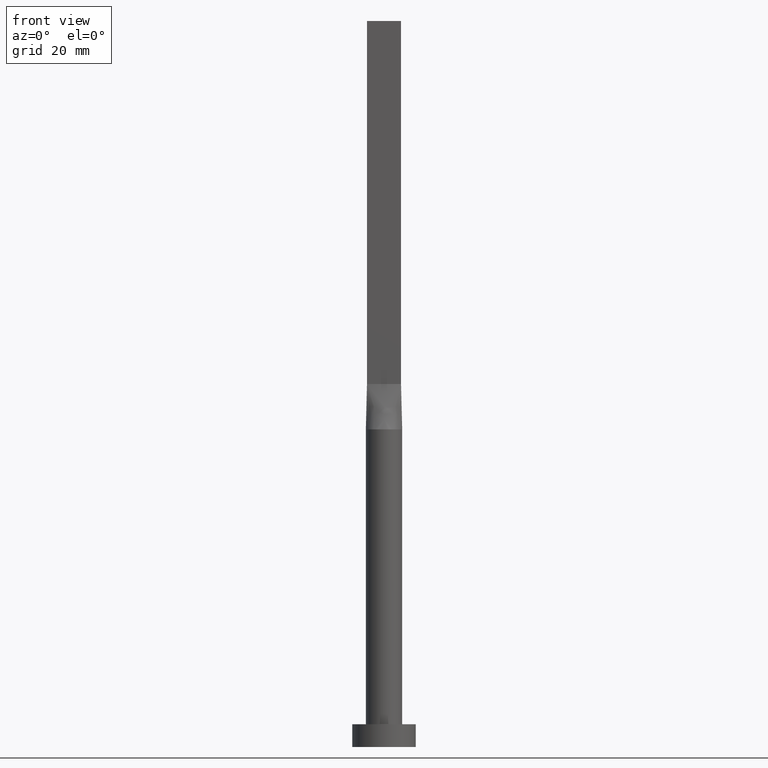
[diagram: clean part render]
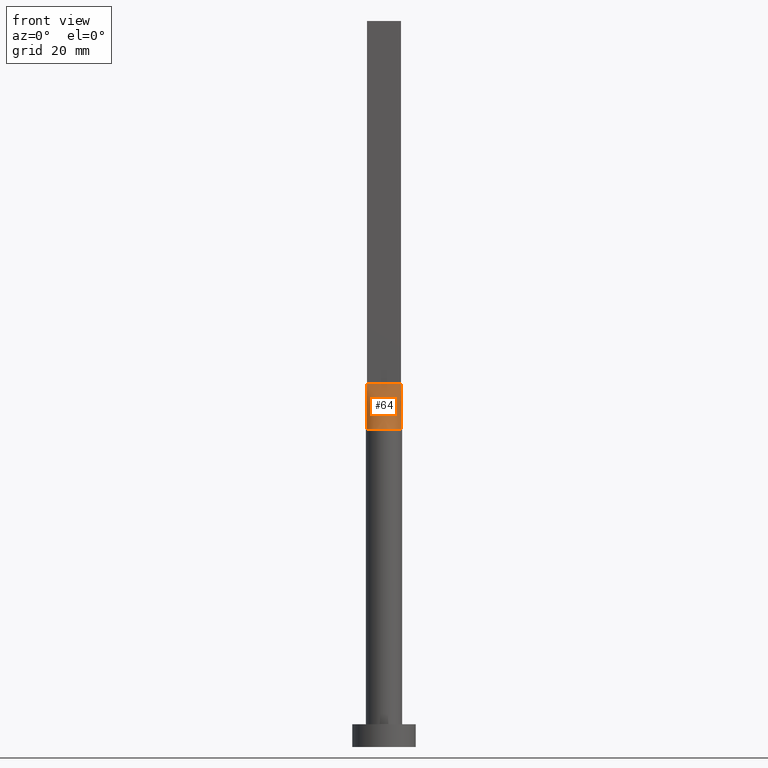
[diagram: same view with one face highlighted and labeled with its STEP entity id]
A machine part, front view. The second image highlights one B-rep face of the part: STEP entity #64.
In plain terms, the highlighted face is a freeform B-spline surface patch.
Its self-contained STEP definition (entity closure, byte-faithful):
#33 = CARTESIAN_POINT ( 'NONE',  ( -0.3125000000000197065, -0.9999999999999993339, 80.00000000000000000 ) ) ;
#35 = CARTESIAN_POINT ( 'NONE',  ( 1.249999999999982236, -0.9999999999999995559, 79.99999999999998579 ) ) ;
#37 = CARTESIAN_POINT ( 'NONE',  ( -2.187500000000013323, -0.9999999999999993339, 79.99999999999998579 ) ) ;
#49 = VECTOR ( 'NONE', #368, 1000.000000000000114 ) ;
#54 = LINE ( 'NONE', #100, #49 ) ;
#61 = EDGE_CURVE ( 'NONE', #141, #547, #78, .T. ) ;
#64 = ADVANCED_FACE ( 'NONE', ( #222 ), #539, .T. ) ;
#73 = CARTESIAN_POINT ( 'NONE',  ( 2.346407003458400364, -3.270103945996944095, 70.00000000000001421 ) ) ;
#76 = CARTESIAN_POINT ( 'NONE',  ( 2.187499999999986677, -0.9999999999999995559, 79.99999999999998579 ) ) ;
#78 = LINE ( 'NONE', #310, #249 ) ;
#79 = CARTESIAN_POINT ( 'NONE',  ( -3.750000000000000000, -0.9999999999999991118, 80.00000000000000000 ) ) ;
#80 = CARTESIAN_POINT ( 'NONE',  ( 1.023074425454087555, -3.898373771260455811, 70.00000000000001421 ) ) ;
#84 = DIRECTION ( 'NONE',  ( 1.000000000000000000, -8.673617379884035472E-17, 0.000000000000000000 ) ) ;
#100 = CARTESIAN_POINT ( 'NONE',  ( -3.807469879202492802, -1.015325301120663548, 75.00000000000001421 ) ) ;
#104 = VERTEX_POINT ( 'NONE', #185 ) ;
#118 = CARTESIAN_POINT ( 'NONE',  ( -2.500000000000011102, -0.9999999999999991118, 79.99999999999998579 ) ) ;
#124 = CARTESIAN_POINT ( 'NONE',  ( -3.781952206537765981, -1.341853921743402900, 70.00000000000001421 ) ) ;
#130 = CARTESIAN_POINT ( 'NONE',  ( 3.781952206537765981, -1.341853921743404232, 70.00000000000001421 ) ) ;
#138 = EDGE_LOOP ( 'NONE', ( #386, #226, #246, #209 ) ) ;
#139 = DIRECTION ( 'NONE',  ( 0.000000000000000000, 0.000000000000000000, 1.000000000000000000 ) ) ;
#141 = VERTEX_POINT ( 'NONE', #143 ) ;
#143 = CARTESIAN_POINT ( 'NONE',  ( 3.865244591400370577, -1.030732999276501527, 70.00000000000000000 ) ) ;
#147 = AXIS2_PLACEMENT_3D ( 'NONE', #529, #139, #171 ) ;
#165 = CARTESIAN_POINT ( 'NONE',  ( -2.346407003458402141, -3.270103945996943651, 69.99999999999998579 ) ) ;
#167 = EDGE_CURVE ( 'NONE', #456, #104, #54, .T. ) ;
#168 = CARTESIAN_POINT ( 'NONE',  ( -3.864939758404985604, -1.030650602241328206, 70.00000000000000000 ) ) ;
#170 = CARTESIAN_POINT ( 'NONE',  ( -1.940702937457744692, -3.532374760555929250, 70.00000000000000000 ) ) ;
#171 = DIRECTION ( 'NONE',  ( 1.000000000000000000, 0.000000000000000000, 0.000000000000000000 ) ) ;
#172 = CARTESIAN_POINT ( 'NONE',  ( 1.562499999999983569, -0.9999999999999995559, 79.99999999999998579 ) ) ;
#185 = CARTESIAN_POINT ( 'NONE',  ( -3.865220763612065902, -1.030726602927787949, 70.00000000000000000 ) ) ;
#209 = ORIENTED_EDGE ( 'NONE', *, *, #167, .T. ) ;
#214 = CARTESIAN_POINT ( 'NONE',  ( -0.5121855420560018635, -4.000000000000000000, 70.00000000000000000 ) ) ;
#217 = CARTESIAN_POINT ( 'NONE',  ( 3.653499896451230633, -1.673258289339059068, 70.00000000000001421 ) ) ;
#219 = CARTESIAN_POINT ( 'NONE',  ( -0.6250000000000193179, -0.9999999999999993339, 79.99999999999998579 ) ) ;
#222 = FACE_OUTER_BOUND ( 'NONE', #138, .T. ) ;
#226 = ORIENTED_EDGE ( 'NONE', *, *, #61, .T. ) ;
#246 = ORIENTED_EDGE ( 'NONE', *, *, #457, .F. ) ;
#249 = VECTOR ( 'NONE', #568, 1000.000000000000114 ) ;
#256 = CARTESIAN_POINT ( 'NONE',  ( 2.499999999999988898, -0.9999999999999995559, 79.99999999999998579 ) ) ;
#258 = CARTESIAN_POINT ( 'NONE',  ( -3.125000000000005773, -0.9999999999999991118, 79.99999999999998579 ) ) ;
#261 = CARTESIAN_POINT ( 'NONE',  ( 0.3124999999999803491, -0.9999999999999995559, 79.99999999999998579 ) ) ;
#280 = VECTOR ( 'NONE', #84, 1000.000000000000000 ) ;
#302 = CARTESIAN_POINT ( 'NONE',  ( 0.5121855420560003092, -3.999999999999999112, 69.99999999999998579 ) ) ;
#306 = CARTESIAN_POINT ( 'NONE',  ( -3.267840578657194239, -2.338604872288696956, 70.00000000000000000 ) ) ;
#309 = CARTESIAN_POINT ( 'NONE',  ( -3.750000000000000000, -0.9999999999999991118, 80.00000000000000000 ) ) ;
#310 = CARTESIAN_POINT ( 'NONE',  ( 3.807469879202492802, -1.015325301120664214, 75.00000000000001421 ) ) ;
#313 = CARTESIAN_POINT ( 'NONE',  ( 3.124999999999993783, -0.9999999999999995559, 79.99999999999998579 ) ) ;
#324 = CARTESIAN_POINT ( 'NONE',  ( 3.750000000000000000, -0.9999999999999997780, 80.00000000000000000 ) ) ;
#348 = CARTESIAN_POINT ( 'NONE',  ( 3.750000000000000000, -0.9999999999999997780, 80.00000000000000000 ) ) ;
#350 = CARTESIAN_POINT ( 'NONE',  ( -1.562500000000016653, -0.9999999999999993339, 79.99999999999998579 ) ) ;
#353 = CARTESIAN_POINT ( 'NONE',  ( -1.250000000000017764, -0.9999999999999993339, 79.99999999999998579 ) ) ;
#356 = CARTESIAN_POINT ( 'NONE',  ( -1.023074425454088887, -3.898373771260456255, 69.99999999999998579 ) ) ;
#357 = EDGE_CURVE ( 'NONE', #104, #141, #403, .T. ) ;
#368 = DIRECTION ( 'NONE',  ( -0.01149316269309400701, -0.003064843384825017159, -0.9999292544707033548 ) ) ;
#386 = ORIENTED_EDGE ( 'NONE', *, *, #357, .T. ) ;
#391 = CARTESIAN_POINT ( 'NONE',  ( -3.009488128496037529, -2.672487015486668227, 70.00000000000000000 ) ) ;
#396 = CARTESIAN_POINT ( 'NONE',  ( 3.864939758404985604, -1.030650602241328873, 70.00000000000000000 ) ) ;
#399 = CARTESIAN_POINT ( 'NONE',  ( 3.437499999999996447, -0.9999999999999995559, 79.99999999999998579 ) ) ;
#403 = CIRCLE ( 'NONE', #147, 4.000000000000000000 ) ;
#434 = CARTESIAN_POINT ( 'NONE',  ( -3.653499896451231521, -1.673258289339057514, 70.00000000000000000 ) ) ;
#436 = CARTESIAN_POINT ( 'NONE',  ( 3.267840578657194239, -2.338604872288699177, 70.00000000000001421 ) ) ;
#438 = CARTESIAN_POINT ( 'NONE',  ( 1.940702937457743360, -3.532374760555930582, 69.99999999999998579 ) ) ;
#441 = CARTESIAN_POINT ( 'NONE',  ( -3.750000000000000000, -0.9999999999999991118, 80.00000000000000000 ) ) ;
#456 = VERTEX_POINT ( 'NONE', #309 ) ;
#457 = EDGE_CURVE ( 'NONE', #456, #547, #484, .T. ) ;
#484 = LINE ( 'NONE', #79, #280 ) ;
#527 = CARTESIAN_POINT ( 'NONE',  ( 0.6249999999999806821, -0.9999999999999995559, 79.99999999999998579 ) ) ;
#529 = CARTESIAN_POINT ( 'NONE',  ( 0.000000000000000000, 0.000000000000000000, 70.00000000000000000 ) ) ;
#539 = B_SPLINE_SURFACE_WITH_KNOTS ( 'NONE', 3, 1, ( 
 ( #168, #441 ),
 ( #124, #565 ),
 ( #434, #258 ),
 ( #306, #118 ),
 ( #391, #37 ),
 ( #165, #350 ),
 ( #170, #353 ),
 ( #356, #219 ),
 ( #214, #33 ),
 ( #302, #261 ),
 ( #80, #527 ),
 ( #438, #35 ),
 ( #73, #172 ),
 ( #572, #76 ),
 ( #436, #256 ),
 ( #217, #313 ),
 ( #130, #399 ),
 ( #396, #348 ) ),
 .UNSPECIFIED., .F., .F., .F.,
 ( 4, 2, 2, 2, 2, 2, 2, 2, 4 ),
 ( 2, 2 ),
 ( 0.000000000000000000, 0.1250000000000000000, 0.2500000000000000000, 0.3750000000000000000, 0.5000000000000000000, 0.6250000000000000000, 0.7500000000000000000, 0.8750000000000000000, 1.000000000000000000 ),
 ( 0.000000000000000000, 1.000000000000000000 ),
 .UNSPECIFIED. ) ;
#547 = VERTEX_POINT ( 'NONE', #324 ) ;
#565 = CARTESIAN_POINT ( 'NONE',  ( -3.437500000000003109, -0.9999999999999991118, 79.99999999999998579 ) ) ;
#568 = DIRECTION ( 'NONE',  ( -0.01149316269309400701, 0.003064843384825017159, 0.9999292544707033548 ) ) ;
#572 = CARTESIAN_POINT ( 'NONE',  ( 3.009488128496036641, -2.672487015486668671, 69.99999999999998579 ) ) ;